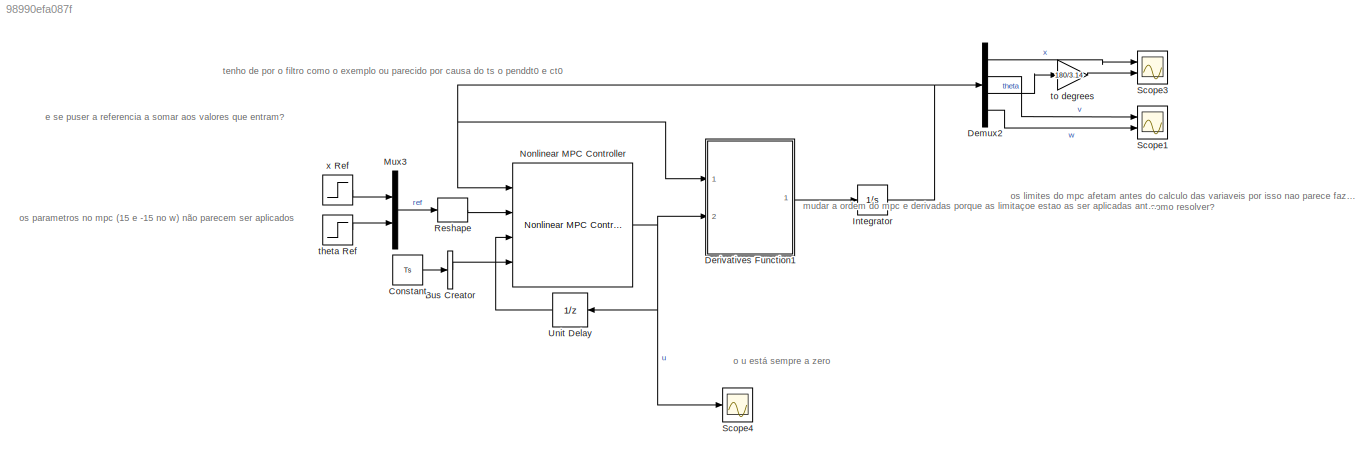
MODEL slx_98990efa087f
KIND model
CONFIG AbsTol = auto
CONFIG EnableMultiTasking = off
CONFIG FixedStep = auto
CONFIG MaxStep = auto
CONFIG MinStep = auto
CONFIG RelTol = 1e-3
CONFIG SampleTimeConstraint = Unconstrained
CONFIG Solver = VariableStepAuto
CONFIG SolverName = VariableStepAuto
CONFIG StartTime = 0.0
CONFIG StopTime = 20
BLOCK [BusCreator] Bus Creator
  DisplayOption = bar
  InheritFromInputs = off
  Inputs = 1
  NonVirtualBus = on
  OutDataTypeStr = Bus: BusNMPC
  Ports = [1, 1]
BLOCK [Constant] Constant
  Value = Ts
BLOCK [Demux] Demux2
  Ports = [1, 4]
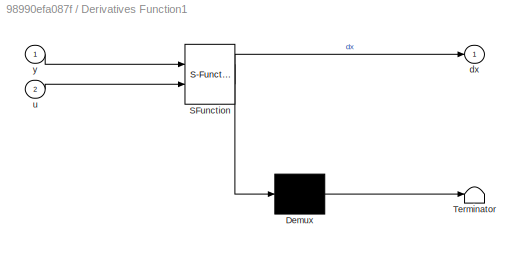
BLOCK [SubSystem] Derivatives Function1
  ErrorFcn = Stateflow.Translate.translate
  PermitHierarchicalResolution = ExplicitOnly
  Ports = [2, 1]
  RequestExecContextInheritance = off
  SFBlockType = MATLAB Function
  TreatAsAtomicUnit = on
BLOCK [Demux] Derivatives Function1/ Demux 
  Outputs = 1
  Ports = [1, 1]
BLOCK [S-Function] Derivatives Function1/ SFunction 
  EnableBusSupport = on
  FunctionName = sf_sfun
  Parameters = K,L,M,d,g,m
  PortCounts = [2 2]
  Ports = [2, 2]
  SFcnIsStateOwnerBlock = off
  SFunctionDeploymentMode = off
  Tag = Stateflow S-Function 3
BLOCK [Terminator] Derivatives Function1/ Terminator 
BLOCK [Outport] Derivatives Function1/dx
  VectorParamsAs1DForOutWhenUnconnected = off
BLOCK [Inport] Derivatives Function1/u
  Port = 2
BLOCK [Inport] Derivatives Function1/y
BLOCK [Integrator] Integrator
  InitialCondition = [0;y0(2);pi;y0(4)]
  Ports = [1, 1]
BLOCK [Mux] Mux3
  DisplayOption = bar
  Inputs = 2
  Ports = [2, 1]
BLOCK [Reference] Nonlinear MPC Controller  REF=mpclib/Nonlinear MPC Controller  (lib defined in mdl_ae329e0e0455)
  Ports = [4, 1]
  SCDEnableBlockLinearizationSpecification = on
  SourceBlock = mpclib/Nonlinear MPC Controller
  SourceProductBaseCode = MP
  SourceType = NonlinearMPC
BLOCK [Reshape] Reshape
  OutputDimensionality = Row vector (2-D)
  Ports = [1, 1]
BLOCK [Scope] Scope1
  Floating = off
  NumInputPorts = 2
  Ports = [2]
  ScopeSpecificationString = Simulink.scopes.TimeScopeBlockCfg('CurrentConfiguration', extmgr.ConfigurationSet(extmgr.Configuration('Core','General UI',true),extmgr.Configuration('Core','Source UI',true),extmgr.Configuration('Sources','WiredSimulink',true,'DataLoggingVariableName','ScopeData1'),extmgr.Configuration('Visuals','Time Domain',true,'SerializedDisplays',{struct('MinYLimReal','-329.47999','MaxYLimReal','971.65268','...<+2027ch>
BLOCK [Scope] Scope3
  Floating = off
  NumInputPorts = 2
  Ports = [2]
  ScopeSpecificationString = Simulink.scopes.TimeScopeBlockCfg('CurrentConfiguration', extmgr.ConfigurationSet(extmgr.Configuration('Core','General UI',true),extmgr.Configuration('Core','Source UI',true),extmgr.Configuration('Sources','WiredSimulink',true,'DataLoggingVariableName','ScopeData2'),extmgr.Configuration('Visuals','Time Domain',true,'SerializedDisplays',{struct('MinYLimReal','-286.30449','MaxYLimReal','761.39934','...<+2039ch>
BLOCK [Scope] Scope4
  Floating = off
  NumInputPorts = 1
  Ports = [1]
  ScopeSpecificationString = Simulink.scopes.TimeScopeBlockCfg('CurrentConfiguration', extmgr.ConfigurationSet(extmgr.Configuration('Core','General UI',true),extmgr.Configuration('Core','Source UI',true),extmgr.Configuration('Sources','WiredSimulink',true,'DataLoggingVariableName','ScopeData1'),extmgr.Configuration('Visuals','Time Domain',true,'SerializedDisplays',{struct('MinYLimReal','-384.37126','MaxYLimReal','1167.8043','...<+1518ch>
BLOCK [UnitDelay] Unit Delay
  HasFrameUpgradeWarning = on
  SampleTime = -1
BLOCK [Step] theta Ref
  After = 0
  SampleTime = 0
  Time = 11
BLOCK [Gain] to degrees
  Gain = 180/3.14
BLOCK [Step] x Ref
  After = 0.2
  SampleTime = 0
  Time = 7
ANNOTATION (root): e se puser a referencia a somar aos valores que entram?
ANNOTATION (root): mudar a ordem do mpc e derivadas porque as limitaçoe estao as ser aplicadas antes dos valores serem obtidos?
ANNOTATION (root): o u está sempre a zero
ANNOTATION (root): os parametros no mpc (15 e -15 no w) não parecem ser aplicados
ANNOTATION (root): os limites do mpc afetam antes do calculo das variaveis por isso nao parece fazer efeito. como resolver?
ANNOTATION (root): tenho de por o filtro como o exemplo ou parecido por causa do ts o penddt0 e ct0
LINE Bus Creator:1 -> Nonlinear MPC Controller:4
LINE Constant:1 -> Bus Creator:1
LINE Demux2:1 -> Scope3:1
LINE Demux2:2 -> Scope1:1
LINE Demux2:3 -> to degrees:1
LINE Demux2:4 -> Scope1:2
LINE Derivatives Function1:1 -> Integrator:1
NET Integrator:1 -> Demux2:1, Derivatives Function1:1, Nonlinear MPC Controller:1
LINE Mux3:1 -> Reshape:1
NET Nonlinear MPC Controller:1 -> Derivatives Function1:2, Scope4:1, Unit Delay:1
LINE Reshape:1 -> Nonlinear MPC Controller:2
LINE Unit Delay:1 -> Nonlinear MPC Controller:3
LINE theta Ref:1 -> Mux3:2
LINE to degrees:1 -> Scope3:2
LINE x Ref:1 -> Mux3:1
note: NET lines group one-source signal fan-out (src -> all destinations, sorted); 1:1 wires keep LINE
CHART Derivatives Function1 states=1 transitions=1
  STATE_LABEL 'eML_blk_kernel()'
  STATE_LABEL 'SCRIPT:\nfunction dx = derivativesexp(y,m, M, L, g, d, K,u)\n% y = [x , ^x, o , ^o] states , y=xdot\n% M massa do carro, m massa do pendulo, L tamanho do fio\n% d fricçao, g grav no pendulo\n\ndx=0*y;\nSy = sin(y(3));\nCy = cos(y(3));\nD = m*L*L*(M+m*(1-Cy^2));\n\n% setpoints\n% newx = [2; 0; pi; 0];\n% newx = [0; 0; 0; 0];\n% \n% % if(t>12)\n% %     newx = [-1; 0; pi; 0]; \n% % end \n% \n% % open loop (no control)...<+1094ch>'
